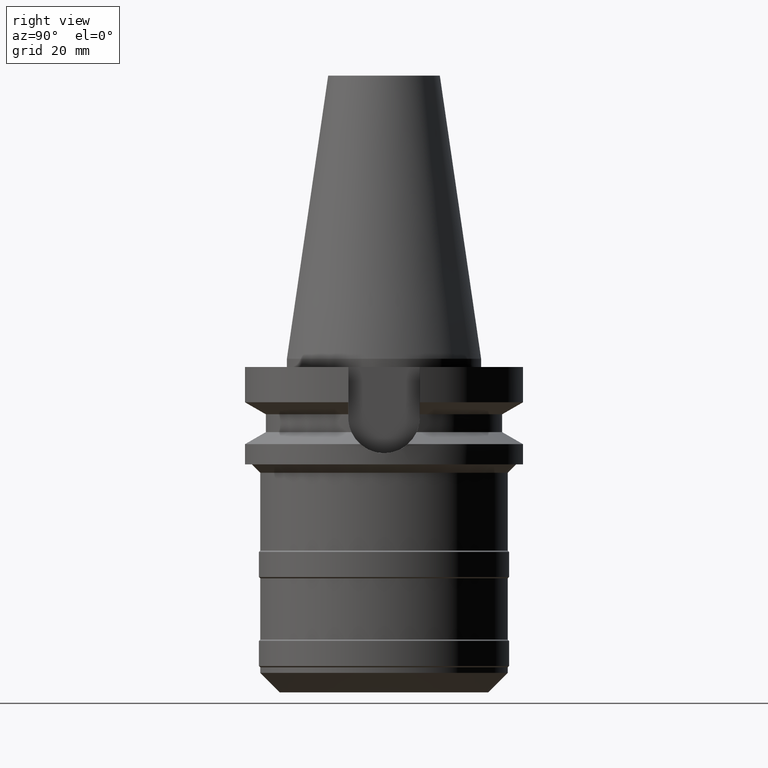
[diagram: clean part render]
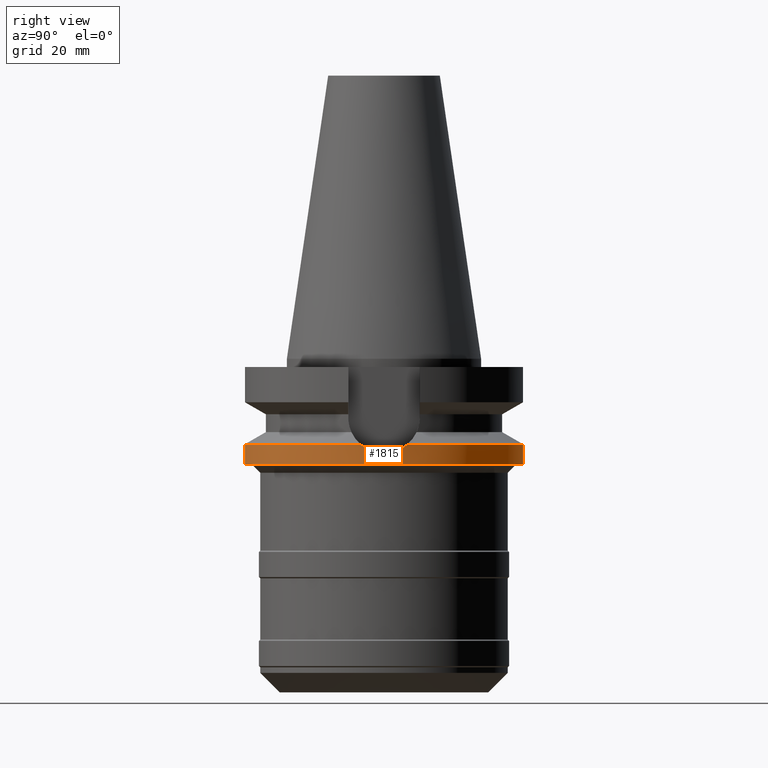
[diagram: same view with one face highlighted and labeled with its STEP entity id]
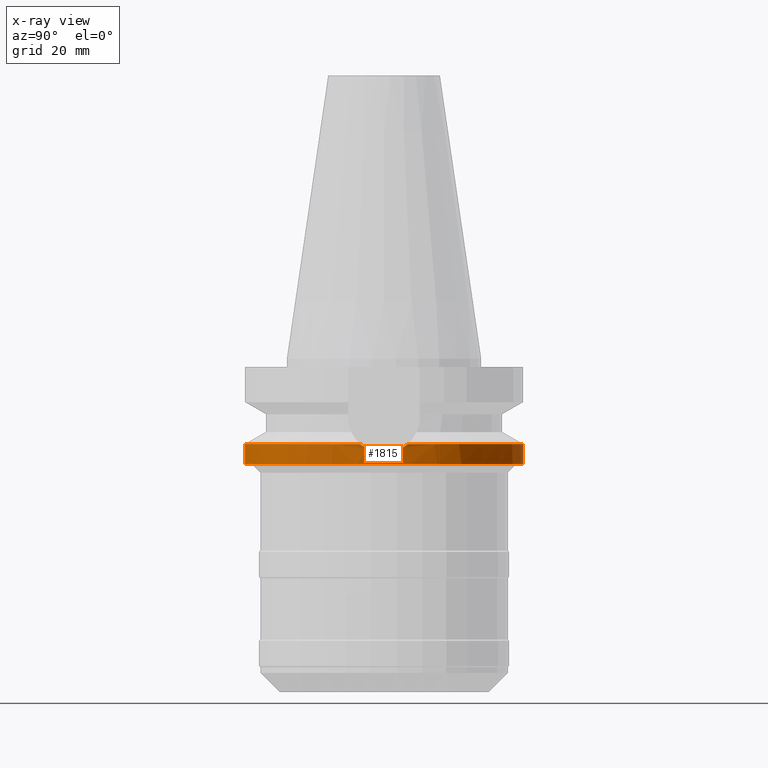
[diagram: x-ray of the same camera — body ghosted, the highlighted face saturated]
A machine part, right view. The second image highlights one B-rep face of the part: STEP entity #1815.
The next image is the same camera in x-ray: the body ghosted, the highlighted face saturated — about 0% of this face is hidden behind the body in this view.
In plain terms, the highlighted cylindrical surface (partial cylindrical patch) has radius 50 mm, axis along (0, 0, -1).
Its self-contained STEP definition (entity closure, byte-faithful):
#500=CARTESIAN_POINT('',(0.E0,2.607150570705E-14,-3.8E1));
#501=DIRECTION('',(0.E0,0.E0,1.E0));
#502=DIRECTION('',(0.E0,-1.E0,0.E0));
#503=AXIS2_PLACEMENT_3D('',#500,#501,#502);
#532=CARTESIAN_POINT('',(4.926250064874E1,-8.556052234130E0,-3.073730776427E1));
#533=CARTESIAN_POINT('',(4.936649274926E1,-7.957305197605E0,-3.127165077750E1));
#534=CARTESIAN_POINT('',(4.956427420312E1,-6.687870302184E0,-3.220410831590E1));
#535=CARTESIAN_POINT('',(4.980475503436E1,-4.596399273628E0,-3.322670381115E1));
#536=CARTESIAN_POINT('',(4.996455558532E1,-2.307587452608E0,-3.386325403119E1));
#537=CARTESIAN_POINT('',(5.E1,-7.764086523413E-1,-3.4E1));
#538=CARTESIAN_POINT('',(5.E1,1.762817835033E-14,-3.4E1));
#543=CARTESIAN_POINT('',(5.E1,1.762817835033E-14,-3.4E1));
#544=CARTESIAN_POINT('',(5.E1,7.765299961651E-1,-3.4E1));
#545=CARTESIAN_POINT('',(4.996454403374E1,2.307888143849E0,-3.386320905368E1));
#546=CARTESIAN_POINT('',(4.980472215984E1,4.596752317199E0,-3.322656979368E1));
#547=CARTESIAN_POINT('',(4.956423579778E1,6.688137174848E0,-3.220393686045E1));
#548=CARTESIAN_POINT('',(4.936647625935E1,7.957400140277E0,-3.127156604731E1));
#549=CARTESIAN_POINT('',(4.926250064874E1,8.556052234130E0,-3.073730776427E1));
#554=DIRECTION('',(0.E0,2.152361642122E-14,-1.E0));
#555=VECTOR('',#554,7.262692235730E0);
#556=CARTESIAN_POINT('',(0.E0,5.E1,-3.073730776427E1));
#557=LINE('',#556,#555);
#611=CARTESIAN_POINT('',(0.E0,0.E0,-3.073730776427E1));
#612=DIRECTION('',(0.E0,0.E0,-1.E0));
#613=DIRECTION('',(9.852500129747E-1,-1.711210446826E-1,0.E0));
#614=AXIS2_PLACEMENT_3D('',#611,#612,#613);
#655=DIRECTION('',(0.E0,-2.054527022026E-14,-1.E0));
#656=VECTOR('',#655,7.262692235730E0);
#657=CARTESIAN_POINT('',(0.E0,-5.E1,-3.073730776427E1));
#658=LINE('',#657,#656);
#680=CARTESIAN_POINT('',(0.E0,0.E0,-3.073730776427E1));
#681=DIRECTION('',(0.E0,0.E0,-1.E0));
#682=DIRECTION('',(0.E0,1.E0,0.E0));
#683=AXIS2_PLACEMENT_3D('',#680,#681,#682);
#1216=CARTESIAN_POINT('',(0.E0,-5.E1,-3.8E1));
#1217=CARTESIAN_POINT('',(0.E0,5.E1,-3.8E1));
#1218=VERTEX_POINT('',#1216);
#1219=VERTEX_POINT('',#1217);
#1220=VERTEX_POINT('',#543);
#1221=VERTEX_POINT('',#549);
#1222=VERTEX_POINT('',#532);
#1223=CARTESIAN_POINT('',(0.E0,5.E1,-3.073730776427E1));
#1224=VERTEX_POINT('',#1223);
#1225=CARTESIAN_POINT('',(0.E0,-5.E1,-3.073730776427E1));
#1226=VERTEX_POINT('',#1225);
#1795=CARTESIAN_POINT('',(0.E0,2.607150570705E-14,1.1289E2));
#1796=DIRECTION('',(0.E0,0.E0,-1.E0));
#1797=DIRECTION('',(0.E0,-1.E0,0.E0));
#1798=AXIS2_PLACEMENT_3D('',#1795,#1796,#1797);
#1799=CYLINDRICAL_SURFACE('',#1798,5.E1);
#1801=ORIENTED_EDGE('',*,*,#1800,.T.);
#1803=ORIENTED_EDGE('',*,*,#1802,.T.);
#1805=ORIENTED_EDGE('',*,*,#1804,.F.);
#1807=ORIENTED_EDGE('',*,*,#1806,.T.);
#1808=ORIENTED_EDGE('',*,*,#1784,.F.);
#1810=ORIENTED_EDGE('',*,*,#1809,.F.);
#1812=ORIENTED_EDGE('',*,*,#1811,.F.);
#1813=EDGE_LOOP('',(#1801,#1803,#1805,#1807,#1808,#1810,#1812));
#1814=FACE_OUTER_BOUND('',#1813,.F.);
#504=CIRCLE('',#503,5.E1);
#539=B_SPLINE_CURVE_WITH_KNOTS('',3,(#532,#533,#534,#535,#536,#537,#538),
.UNSPECIFIED.,.F.,.F.,(4,1,1,1,4),(0.E0,2.5E-1,5.E-1,7.5E-1,1.E0),
.UNSPECIFIED.);
#550=B_SPLINE_CURVE_WITH_KNOTS('',3,(#543,#544,#545,#546,#547,#548,#549),
.UNSPECIFIED.,.F.,.F.,(4,1,1,1,4),(0.E0,2.5E-1,5.E-1,7.5E-1,1.E0),
.UNSPECIFIED.);
#615=CIRCLE('',#614,5.E1);
#684=CIRCLE('',#683,5.E1);
#1784=EDGE_CURVE('',#1218,#1219,#504,.T.);
#1800=EDGE_CURVE('',#1222,#1220,#539,.T.);
#1802=EDGE_CURVE('',#1220,#1221,#550,.T.);
#1804=EDGE_CURVE('',#1224,#1221,#684,.T.);
#1806=EDGE_CURVE('',#1224,#1219,#557,.T.);
#1809=EDGE_CURVE('',#1226,#1218,#658,.T.);
#1811=EDGE_CURVE('',#1222,#1226,#615,.T.);
#1815=ADVANCED_FACE('',(#1814),#1799,.T.);